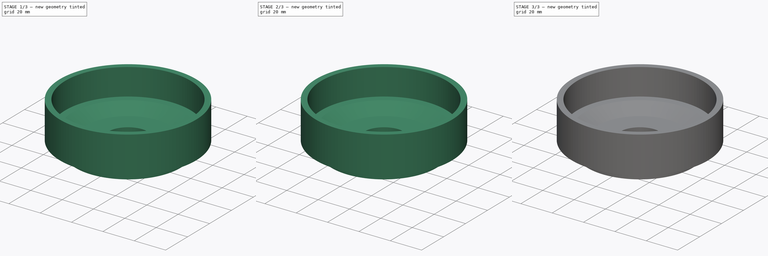
[diagram: build sequence overview — one tinted view per stage of 3, left to right]
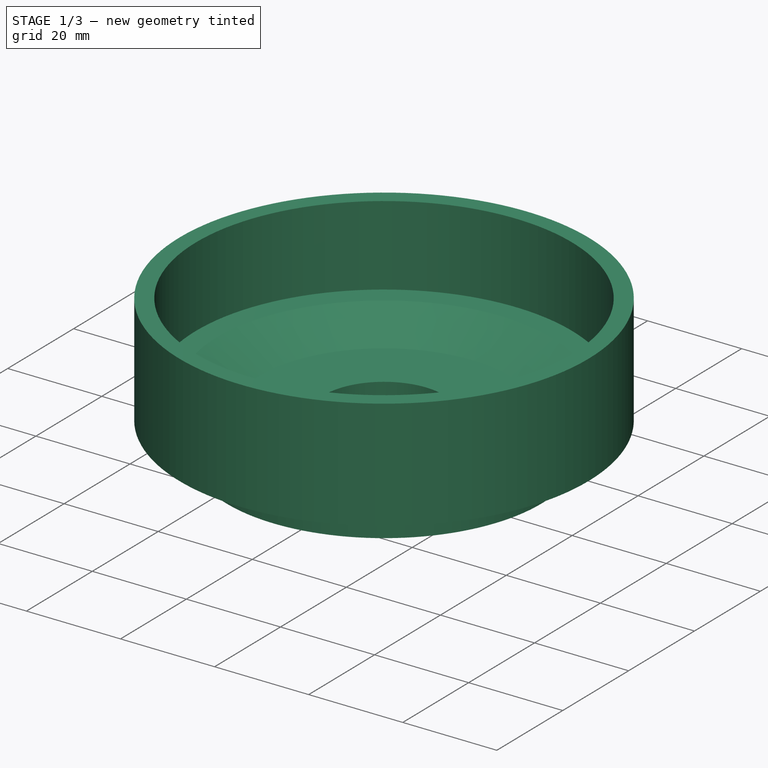
[diagram: stage 1 of 3 — iso view after this stage's code; geometry added in this stage tinted green]
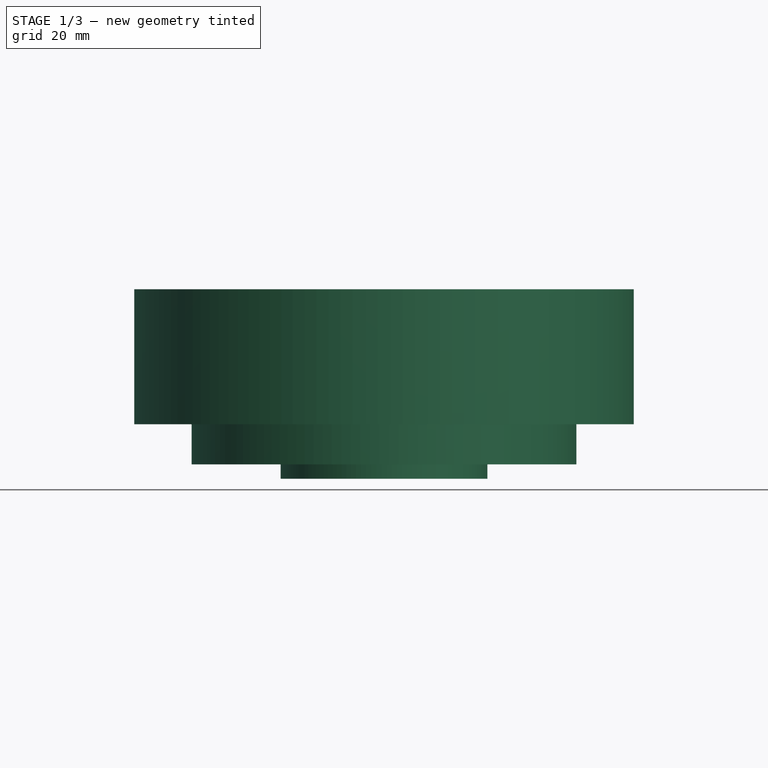
[diagram: stage 1 of 3 — front view after this stage's code; geometry added in this stage tinted green]
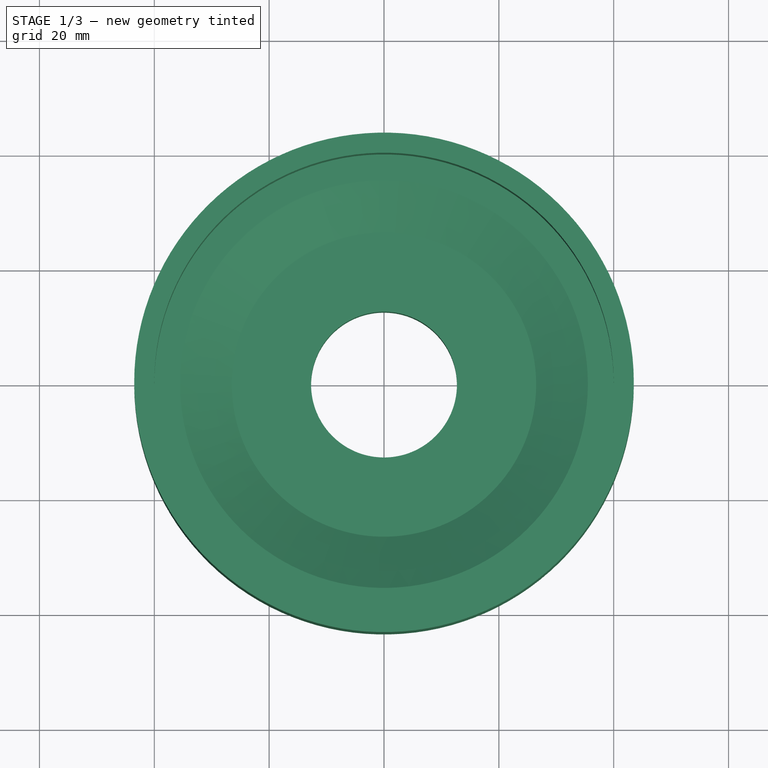
[diagram: stage 1 of 3 — top view after this stage's code; geometry added in this stage tinted green]
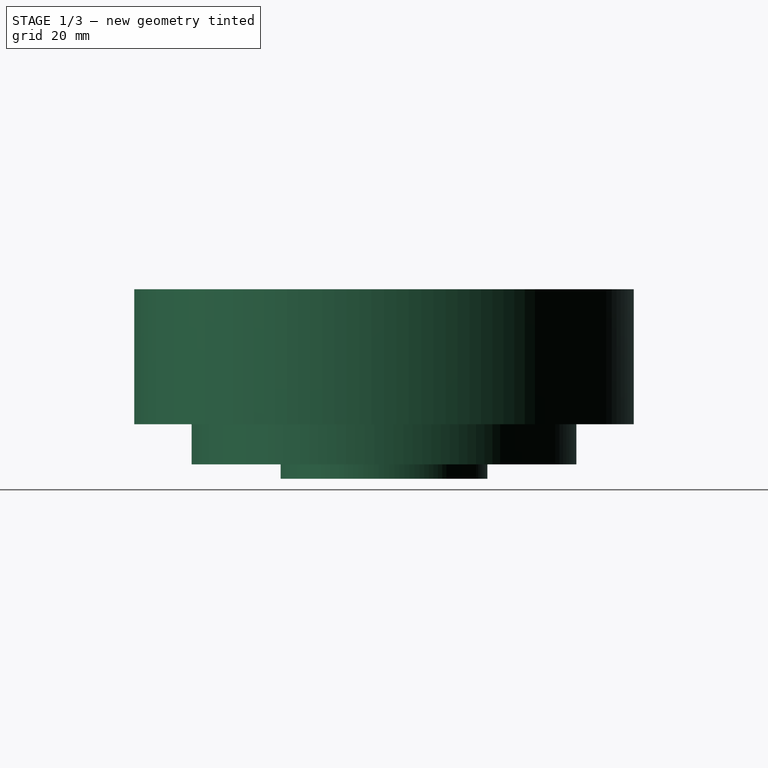
[diagram: stage 1 of 3 — right view after this stage's code; geometry added in this stage tinted green]
FCSTD DOCUMENT  (FreeCAD 1.1R20260325 (Git shallow))
Label: Flexicoil TPU end cap
License: All rights reserved
LicenseURL: https://en.wikipedia.org/wiki/All_rights_reserved
objects: App::Point×4, Sketcher::SketchObject×4, PartDesign::Body×4, PartDesign::Revolution×3, PartDesign::FeatureBase×2, PartDesign::Groove×1
note: 28 computed .brp shape members not serialized (recipe doc carries the construction recipe); baked Part::Feature solids carry a one-line shape summary decoded from their .brp

FEATURE [App::Point] Origin001
  Role = Origin
FEATURE [Sketcher::SketchObject] Sketch
  ArcFitTolerance = 1e-06
  AttachmentSupport = -> [Origin]
  ExternalTypes = [0]
  FullyConstrained = true
  MakeInternals = false
  MapMode = 5
  Placement = pos=(0,0,0) rot=(1,0,0;1.5708rad)
  _ExternalGeoVersion = 1
  sketch-geometry (13):
    g0: LineSegment StartX=12.7 StartY=0 StartZ=0 EndX=18 EndY=0 EndZ=0
    g1: LineSegment StartX=18 StartY=0 StartZ=0 EndX=18 EndY=7 EndZ=0
    g2: LineSegment StartX=18 StartY=7 StartZ=0 EndX=27.5 EndY=7 EndZ=0
    g3: LineSegment StartX=27.5 StartY=7 StartZ=0 EndX=33.5 EndY=2.5 EndZ=0
    g4: LineSegment StartX=33.5 StartY=2.5 StartZ=0 EndX=33.5 EndY=9.5 EndZ=0
    g5: LineSegment StartX=33.5 StartY=9.5 StartZ=0 EndX=43.5 EndY=9.5 EndZ=0
    g6: LineSegment StartX=43.5 StartY=9.5 StartZ=0 EndX=43.5 EndY=33 EndZ=0
    g7: LineSegment StartX=43.5 StartY=33 StartZ=0 EndX=40 EndY=33 EndZ=0
    g8: LineSegment StartX=40 StartY=33 StartZ=0 EndX=40 EndY=16 EndZ=0
    g9: LineSegment StartX=40 StartY=16 StartZ=0 EndX=35.5 EndY=16 EndZ=0
    g10: LineSegment StartX=35.5 StartY=16 StartZ=0 EndX=26.5 EndY=11 EndZ=0
    g11: LineSegment StartX=26.5 StartY=11 StartZ=0 EndX=12.7 EndY=11 EndZ=0
    g12: LineSegment StartX=12.7 StartY=11 StartZ=0 EndX=12.7 EndY=0 EndZ=0
  constraints (39):
    c: PointOnObject(g0,g-1)
    c: PointOnObject(g0,g-1)
    c: Coincident(g1,g0)
    c: Vertical(g1)
    c: Coincident(g2,g1)
    c: Horizontal(g2)
    c: Coincident(g3,g2)
    c: Coincident(g4,g3)
    c: Vertical(g4)
    c: Coincident(g5,g4)
    c: Horizontal(g5)
    c: Coincident(g6,g5)
    c: Vertical(g6)
    c: Coincident(g7,g6)
    c: Horizontal(g7)
    c: Coincident(g8,g7)
    c: Vertical(g8)
    c: Coincident(g9,g8)
    c: Horizontal(g9)
    c: Coincident(g10,g9)
    c: Coincident(g11,g10)
    c: Horizontal(g11)
    c: Coincident(g12,g11)
    c: Coincident(g12,g0)
    c: Vertical(g12)
    c: DistanceX(g7,g7) = 3.5
    c: DistanceX(g-1,g7) = 40
    c: DistanceY(g8,g8) = 17
    c: DistanceX(g-1,g9) = 35.5
    c: DistanceY(g10,g9) = 5
    c: DistanceX(g-1,g0) = 12.7
    c: DistanceX(g-1,g0) = 18
    c: DistanceY(g12,g12) = 11
    c: DistanceY(g1,g1) = 7
    c: DistanceX(g-1,g3) = 33.5
    c: DistanceX(g-1,g10) = 26.5
    c: DistanceY(g4,g4) = 7
    c: DistanceY(g6,g6) = 23.5
    c: DistanceX(g2,g3) = 6
FEATURE [PartDesign::Revolution] Revolution
  Angle = 360
  Angle2 = 0
  Axis = (0,2e-16,1)
  Base = (0,0,0)
  FuseOrder = 0
  Profile = -> Sketch
  ReferenceAxis = -> Sketch [V_Axis]
  Refine = true
  Reversed = true
  Suppressed = false
  Type = 0
FEATURE [PartDesign::Body] Body002  label="TPU cap"
  AllowCompound = false
  Group = -> [Clone]
  Origin = -> Origin004
  Tip = -> Clone
FEATURE [App::Point] Origin007  label="Origin009"
  Role = Origin
FEATURE [PartDesign::FeatureBase] Clone001
  BaseFeature = -> Revolution
  Suppressed = false
FEATURE [PartDesign::Body] Body003  label="TPU cap no gasket"
  AllowCompound = true
  Group = -> [Clone001]
  Origin = -> Origin006
  Tip = -> Clone001
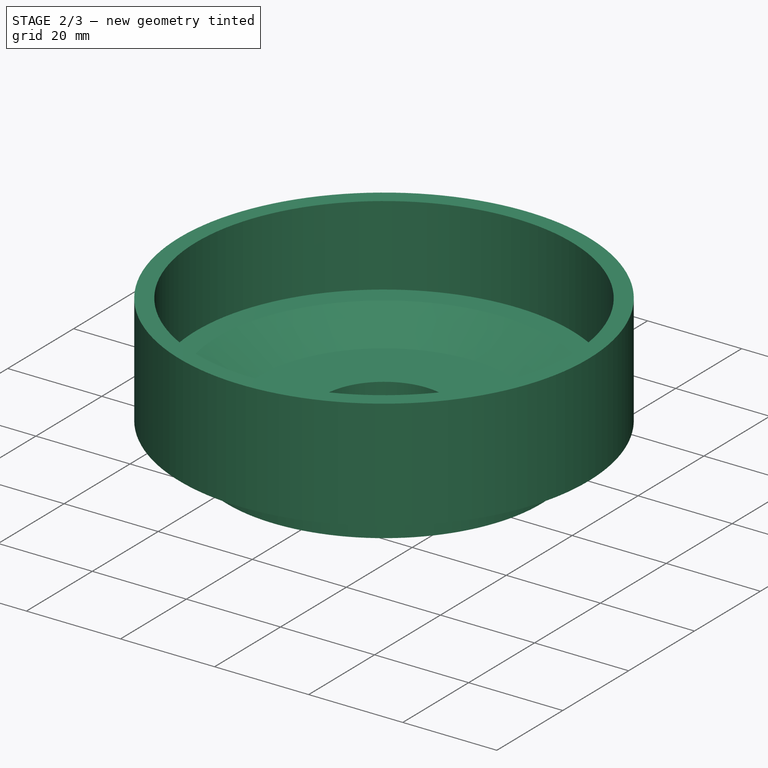
[diagram: stage 2 of 3 — iso view after this stage's code; geometry added in this stage tinted green]
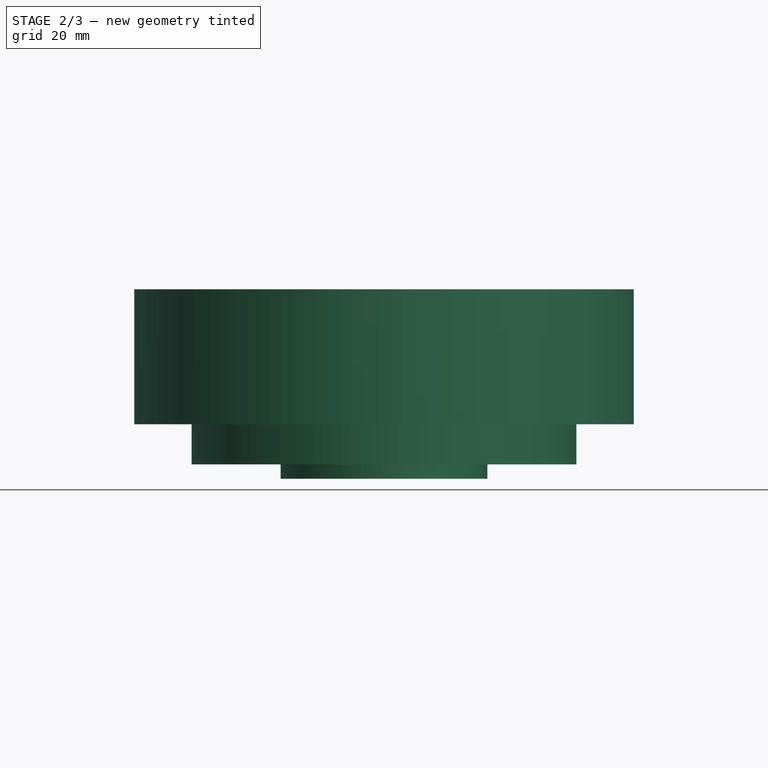
[diagram: stage 2 of 3 — front view after this stage's code; geometry added in this stage tinted green]
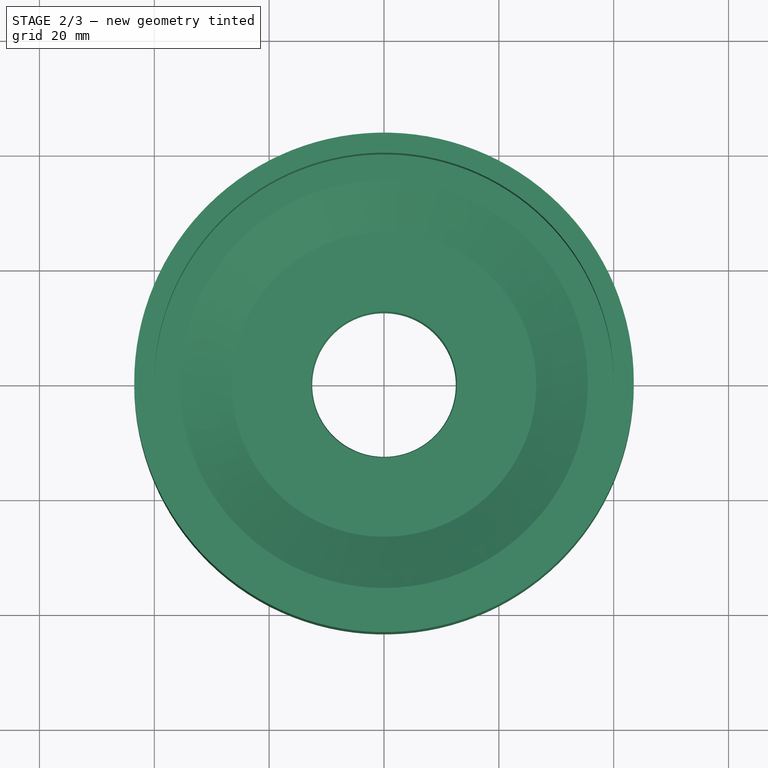
[diagram: stage 2 of 3 — top view after this stage's code; geometry added in this stage tinted green]
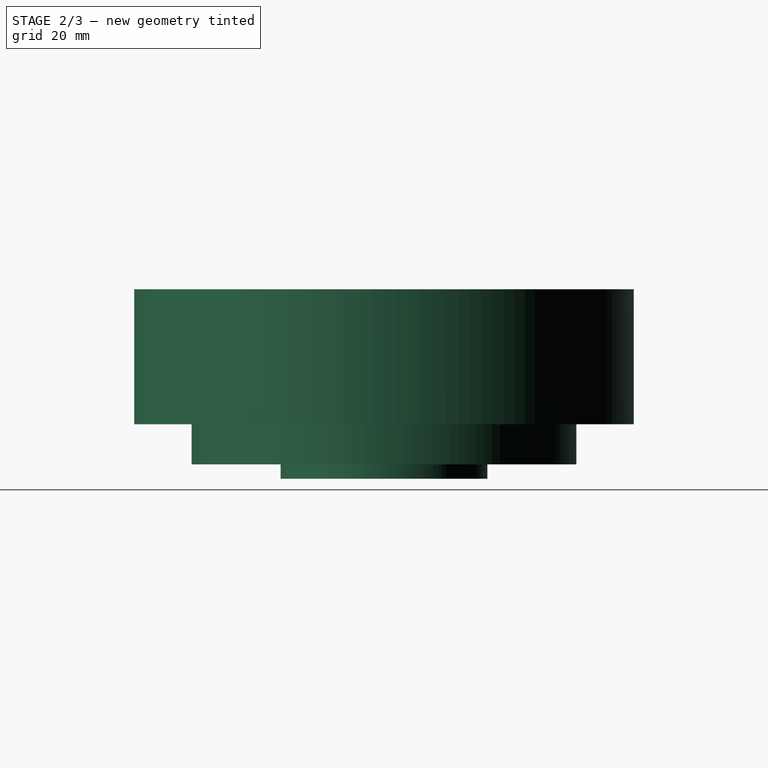
[diagram: stage 2 of 3 — right view after this stage's code; geometry added in this stage tinted green]
FEATURE [Sketcher::SketchObject] Sketch001
  ArcFitTolerance = 1e-06
  AttachmentSupport = -> [Origin]
  ExternalTypes = [0]
  FullyConstrained = true
  MakeInternals = false
  MapMode = 5
  Placement = pos=(0,0,0) rot=(1,0,0;1.5708rad)
  _ExternalGeoVersion = 1
  sketch-geometry (2):
    g0: Circle CenterX=14.25 CenterY=5.5 CenterZ=0 NormalX=0 NormalY=0 NormalZ=1 AngleXU=0 Radius=1.75
    g1: LineSegment [constr] StartX=12.5 StartY=5.5 StartZ=0 EndX=12.5 EndY=0 EndZ=0
  constraints (6):
    c: Diameter(g0) = 3.5
    c: DistanceY(g-1,g0) = 5.5
    c: PointOnObject(g1,g-1)
    c: Vertical(g1)
    c: Tangent(g1,g0) = -1.5708
    c: DistanceX(g-1,g1) = 12.5
FEATURE [PartDesign::Revolution] Revolution001
  Angle = 360
  Angle2 = 0
  Axis = (0,2e-16,1)
  Base = (0,0,0)
  BaseFeature = -> Revolution
  FuseOrder = 0
  Profile = -> Sketch001
  ReferenceAxis = -> Sketch001 [V_Axis]
  Refine = true
  Reversed = true
  Suppressed = false
  Type = 0
FEATURE [PartDesign::Body] Body001  label="Stiffener"
  AllowCompound = false
  Group = -> [Sketch003,Revolution002]
  Origin = -> Origin002
  Tip = -> Revolution002
FEATURE [App::Point] Origin005  label="Origin006"
  Role = Origin
FEATURE [PartDesign::FeatureBase] Clone
  BaseFeature = -> Revolution001
  Suppressed = false
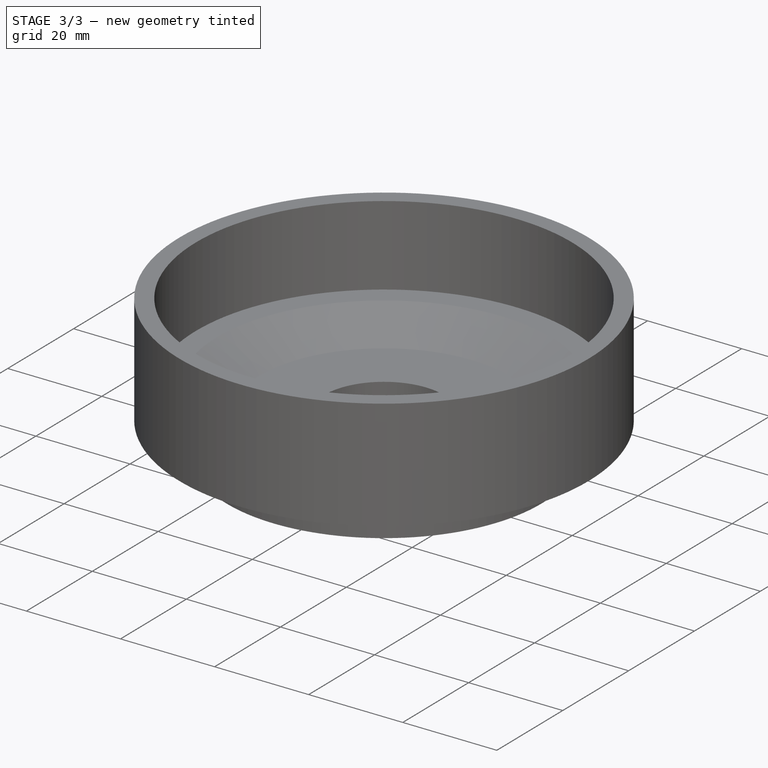
[diagram: stage 3 of 3 — iso view after this stage's code; geometry added in this stage tinted green]
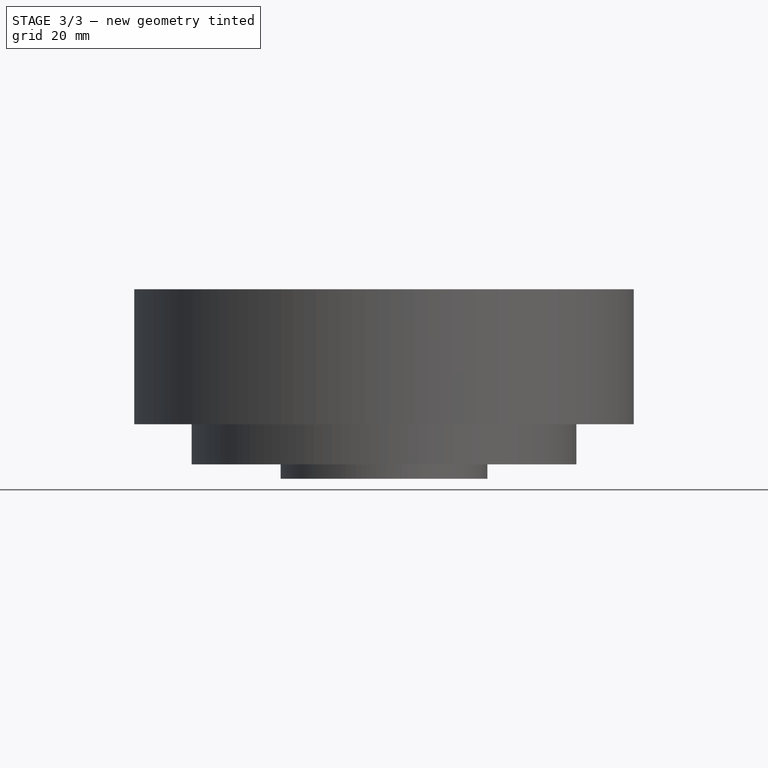
[diagram: stage 3 of 3 — front view after this stage's code; geometry added in this stage tinted green]
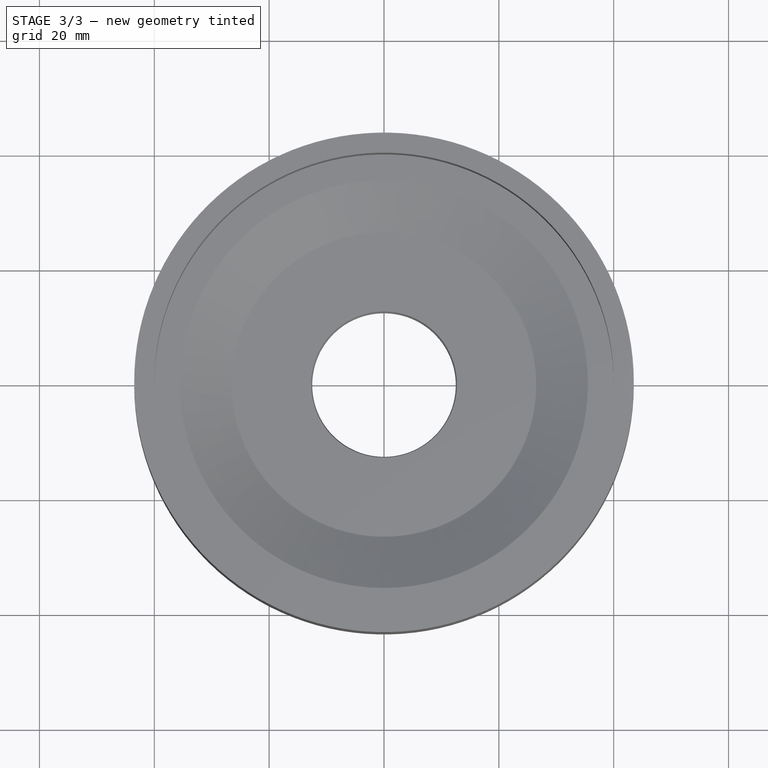
[diagram: stage 3 of 3 — top view after this stage's code; geometry added in this stage tinted green]
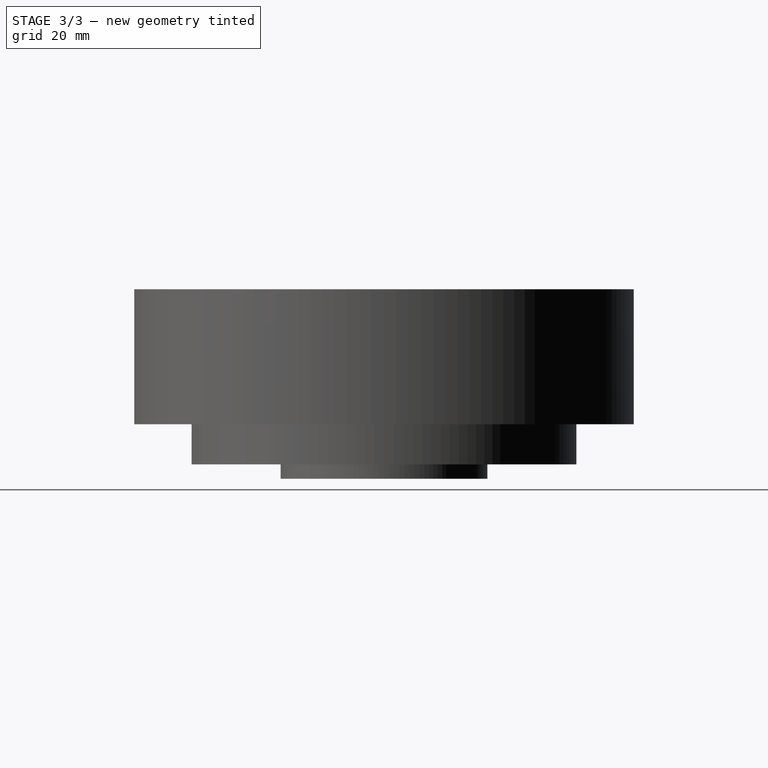
[diagram: stage 3 of 3 — right view after this stage's code; geometry added in this stage tinted green]
FEATURE [Sketcher::SketchObject] Sketch002
  ArcFitTolerance = 1e-06
  AttachmentSupport = -> [Origin]
  ExternalTypes = [0,0]
  FullyConstrained = true
  MakeInternals = false
  MapMode = 5
  Placement = pos=(0,0,0) rot=(1,0,0;1.5708rad)
  _ExternalGeoVersion = 1
  sketch-geometry (4):
    g0: LineSegment StartX=15 StartY=9.5 StartZ=0 EndX=27 EndY=9.5 EndZ=0
    g1: LineSegment StartX=27 StartY=9.5 StartZ=0 EndX=27 EndY=8.5 EndZ=0
    g2: LineSegment StartX=27 StartY=8.5 StartZ=0 EndX=15 EndY=8.5 EndZ=0
    g3: LineSegment StartX=15 StartY=9.5 StartZ=0 EndX=15 EndY=8.5 EndZ=0
  constraints (12):
    c: Horizontal(g0)
    c: Coincident(g1,g0)
    c: Coincident(g2,g1)
    c: Horizontal(g2)
    c: Coincident(g3,g0)
    c: Coincident(g3,g2)
    c: Vertical(g1)
    c: DistanceY(g1,g1) = 1
    c: DistanceY(g-1,g2) = 8.5
    c: Vertical(g3)
    c: DistanceX(g-1,g2) = 15
    c: DistanceX(g-1,g1) = 27
FEATURE [PartDesign::Groove] Groove
  Angle = 360
  Angle2 = 0
  Axis = (0,2e-16,1)
  Base = (0,0,0)
  BaseFeature = -> Revolution001
  Profile = -> Sketch002
  ReferenceAxis = -> Sketch002 [V_Axis]
  Refine = true
  Suppressed = false
  Type = 0
FEATURE [PartDesign::Body] Body  label="TPU Cap with stiffener"
  AllowCompound = false
  Group = -> [Sketch,Revolution,Sketch001,Revolution001,Sketch002,Groove]
  Origin = -> Origin
  Tip = -> Groove
FEATURE [App::Point] Origin003
  Role = Origin
FEATURE [Sketcher::SketchObject] Sketch003
  ArcFitTolerance = 1e-06
  AttachmentSupport = -> [Origin002]
  ExternalTypes = [0]
  FullyConstrained = true
  MakeInternals = false
  MapMode = 5
  Placement = pos=(0,0,0) rot=(1,0,0;1.5708rad)
  _ExternalGeoVersion = 1
  sketch-geometry (4):
    g0: LineSegment StartX=15 StartY=9.5 StartZ=0 EndX=27 EndY=9.5 EndZ=0
    g1: LineSegment StartX=27 StartY=9.5 StartZ=0 EndX=27 EndY=8.5 EndZ=0
    g2: LineSegment StartX=27 StartY=8.5 StartZ=0 EndX=15 EndY=8.5 EndZ=0
    g3: LineSegment StartX=15 StartY=9.5 StartZ=0 EndX=15 EndY=8.5 EndZ=0
  constraints (12):
    c: Horizontal(g0)
    c: Coincident(g1,g0)
    c: Vertical(g1)
    c: Coincident(g2,g1)
    c: Horizontal(g2)
    c: Coincident(g3,g0)
    c: Coincident(g3,g2)
    c: Vertical(g3)
    c: DistanceY(g1,g1) = 1
    c: DistanceX(g-1,g1) = 27
    c: DistanceX(g-1,g2) = 15
    c: DistanceY(g-1,g2) = 8.5
FEATURE [PartDesign::Revolution] Revolution002
  Angle = 360
  Angle2 = 0
  Axis = (0,2e-16,1)
  Base = (0,0,0)
  FuseOrder = 0
  Profile = -> Sketch003
  ReferenceAxis = -> Sketch003 [V_Axis]
  Refine = true
  Reversed = true
  Suppressed = false
  Type = 0
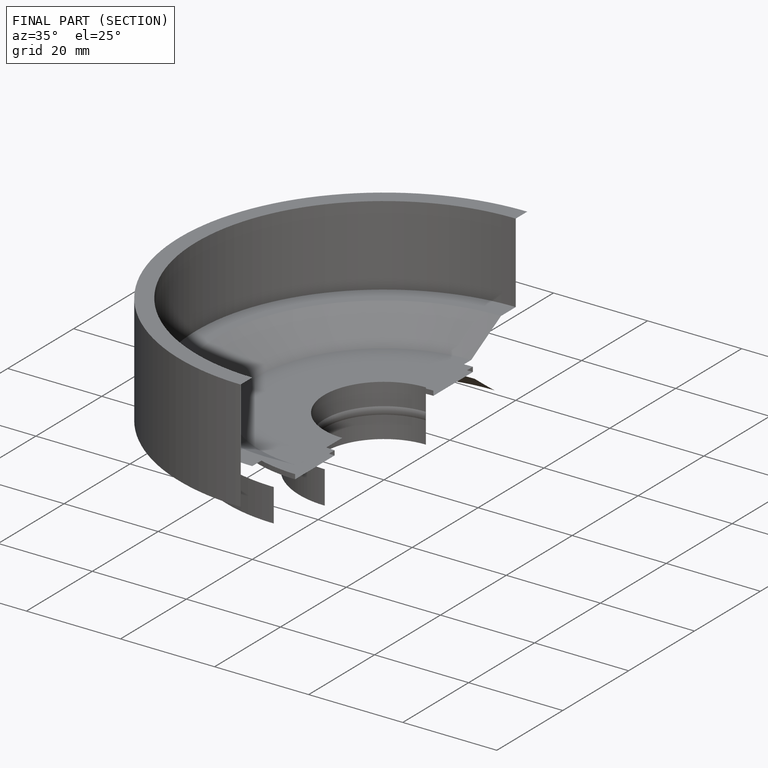
[diagram: finished part — half-section view (interior)]
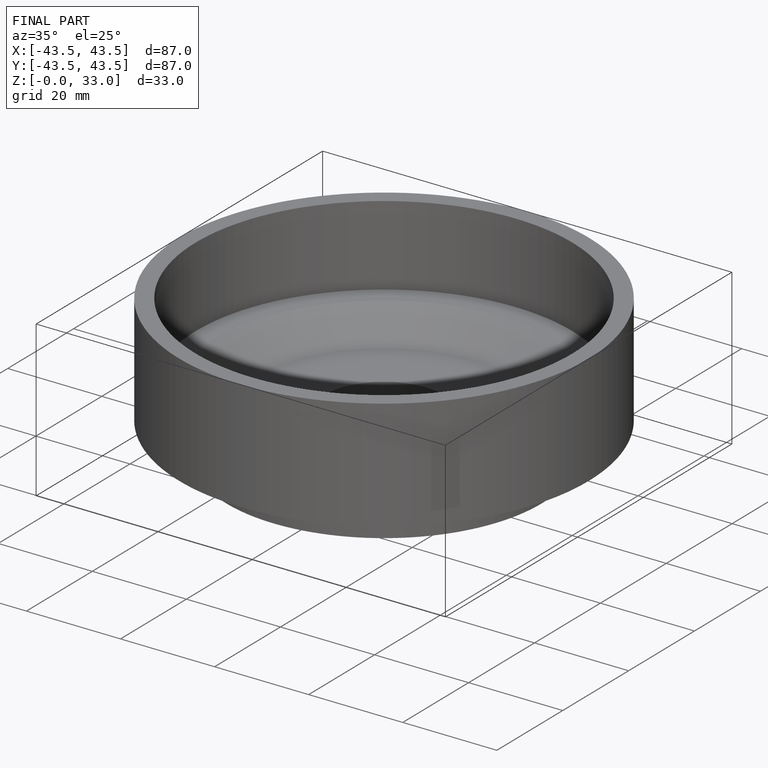
[diagram: finished part — iso view with bounding-box wireframe]
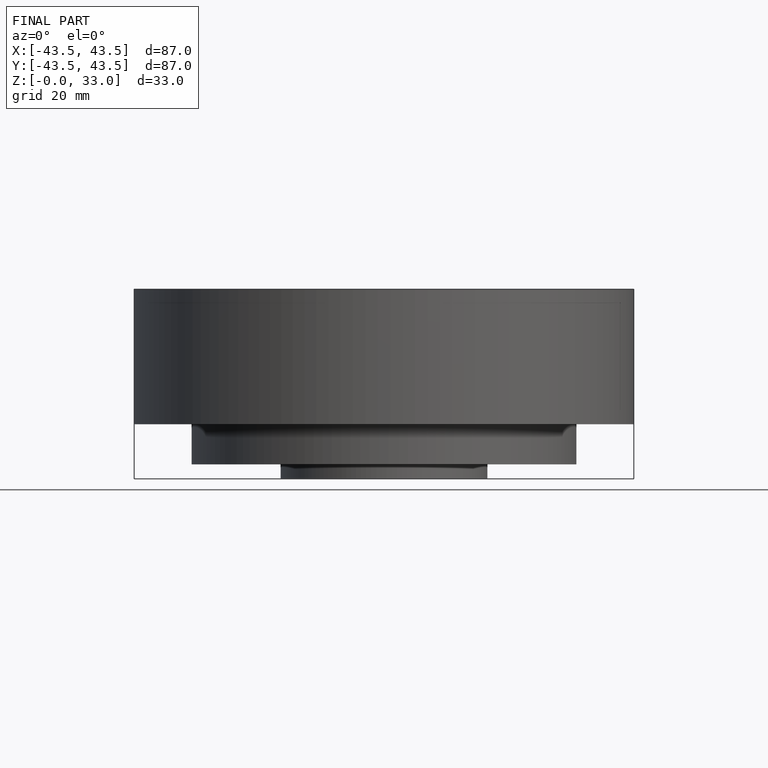
[diagram: finished part — front view with bounding-box wireframe]
